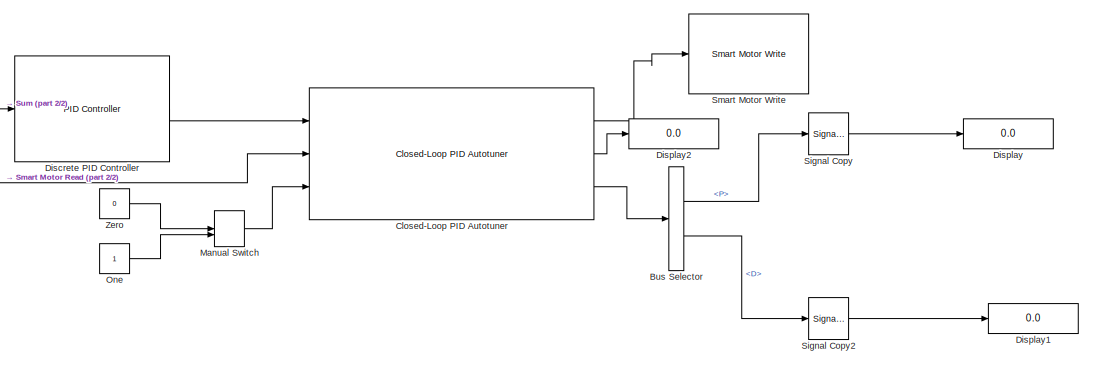
[diagram: root canvas - part 1/2, center side, full height]
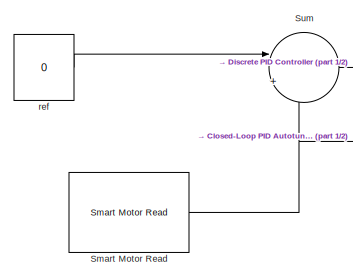
[diagram: root canvas - part 2/2, middle left region]
MODEL slx_b11b76bfe4c9
KIND model
CONFIG AbsTol = auto
CONFIG EnableMultiTasking = off
CONFIG FixedStep = auto
CONFIG MaxStep = auto
CONFIG MinStep = auto
CONFIG RelTol = 1e-3
CONFIG SampleTimeConstraint = Unconstrained
CONFIG SolverName = FixedStepAuto
CONFIG StartTime = 0.0
CONFIG StopTime = inf
BLOCK [BusSelector] Bus Selector
  OutputSignals = P,D
  Ports = [1, 2]
BLOCK [Reference] Closed-Loop PID Autotuner  REF=slctrlblks/Closed-Loop PID Autotuner
  Ports = [3, 3]
  SourceBlock = slctrlblks/Closed-Loop PID Autotuner
  SourceProductBaseCode = SD
  SourceType = ClosedLoopOnlinePIDTuner
BLOCK [Reference] Discrete PID Controller  REF=slpidlib/PID Controller
  Ports = [1, 1]
  SourceBlock = slpidlib/PID Controller
  SourceProductBaseCode = SL
  SourceType = PID 1dof
BLOCK [Display] Display
  Decimation = 1
  Ports = [1]
BLOCK [Display] Display1
  Decimation = 1
  Ports = [1]
BLOCK [Display] Display2
  Decimation = 1
  Ports = [1]
BLOCK [ManualSwitch] Manual Switch
  CurrentSetting = 0
BLOCK [Constant] One
  OutDataTypeStr = Inherit: Inherit via back propagation
BLOCK [SignalConversion] Signal Copy
  OverrideOpt = off
BLOCK [SignalConversion] Signal Copy2
  OverrideOpt = off
BLOCK [Reference] Smart Motor Read  REF=vexv5lib/Sensors/Smart Motor Read
  Ports = [0, 1]
  SourceBlock = vexv5lib/Sensors/Smart Motor Read
  SourceProductBaseCode = VEXV5
  SourceType = vexv5.SmartMotorRead
BLOCK [Reference] Smart Motor Write  REF=vexv5lib/Actuators/Smart Motor Write
  Ports = [1]
  SourceBlock = vexv5lib/Actuators/Smart Motor Write
  SourceProductBaseCode = VEXV5
  SourceType = vexv5.SmartMotorWrite
BLOCK [Sum] Sum
  Inputs = |+-
  Ports = [2, 1]
BLOCK [Constant] Zero
  OutDataTypeStr = Inherit: Inherit via back propagation
  Value = 0
BLOCK [Constant] ref
  Value = 0
LINE Bus Selector:1 -> Signal Copy:1
LINE Bus Selector:2 -> Signal Copy2:1
LINE Closed-Loop PID Autotuner:1 -> Smart Motor Write:1
LINE Closed-Loop PID Autotuner:2 -> Display2:1
LINE Closed-Loop PID Autotuner:3 -> Bus Selector:1
LINE Discrete PID Controller:1 -> Closed-Loop PID Autotuner:1
LINE Manual Switch:1 -> Closed-Loop PID Autotuner:3
LINE One:1 -> Manual Switch:2
LINE Signal Copy2:1 -> Display1:1
LINE Signal Copy:1 -> Display:1
NET Smart Motor Read:1 -> Closed-Loop PID Autotuner:2, Sum:2
LINE Sum:1 -> Discrete PID Controller:1
LINE Zero:1 -> Manual Switch:1
LINE ref:1 -> Sum:1
note: NET lines group one-source signal fan-out (src -> all destinations, sorted); 1:1 wires keep LINE
